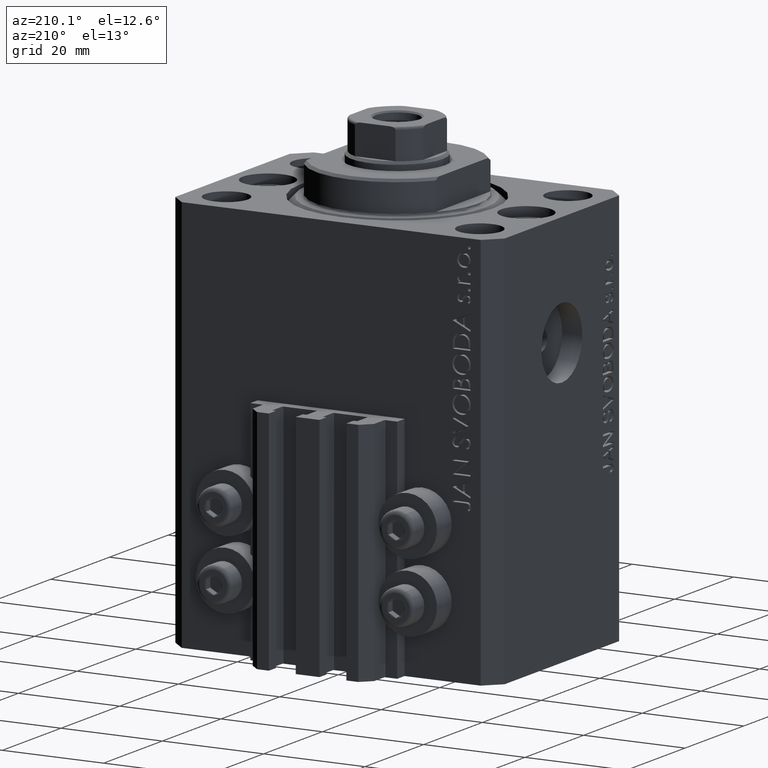
[diagram: clean part render]
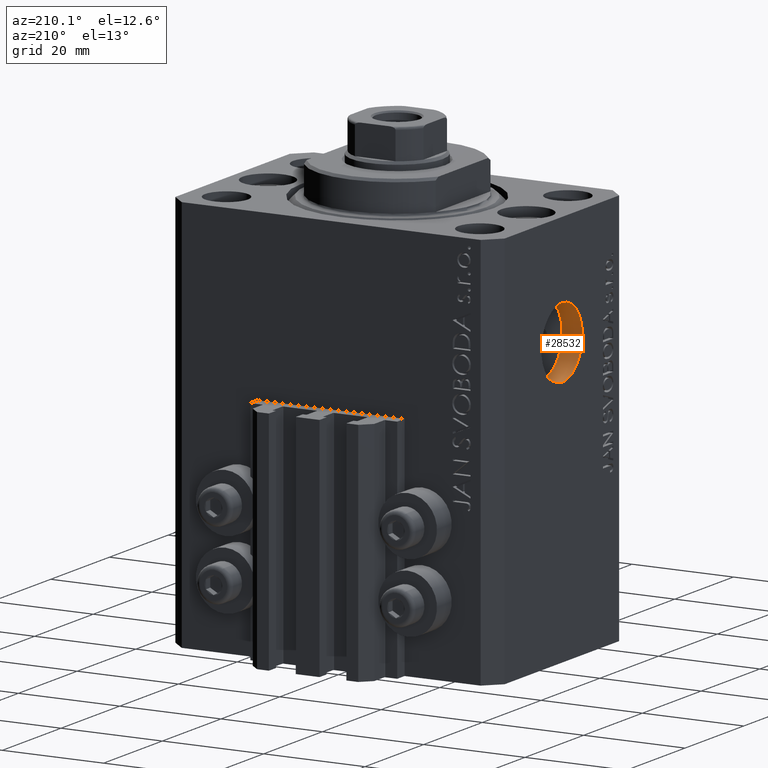
[diagram: same view with one face highlighted and labeled with its STEP entity id]
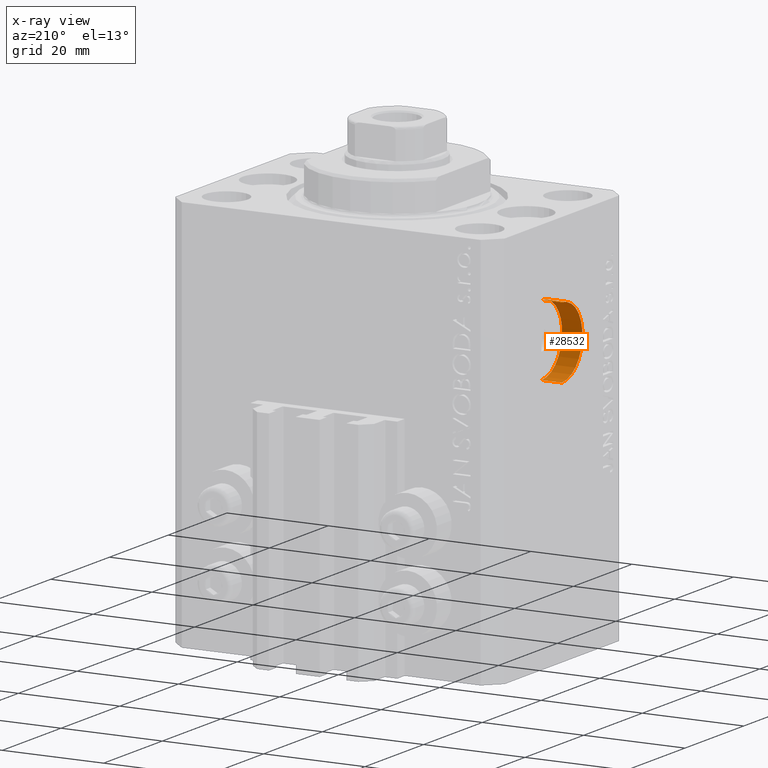
[diagram: x-ray of the same camera — body ghosted, the highlighted face saturated]
A machine part, auxiliary view. The second image highlights one B-rep face of the part: STEP entity #28532.
The next image is the same camera in x-ray: the body ghosted, the highlighted face saturated — about 0% of this face is hidden behind the body in this view.
In plain terms, the highlighted cylindrical surface (partial cylindrical patch) has radius 7 mm, axis along (-1, -0, -0).
Its self-contained STEP definition (entity closure, byte-faithful):
#1762 = VERTEX_POINT ( 'NONE', #34485 ) ;
#2728 = CYLINDRICAL_SURFACE ( 'NONE', #32002, 6.999999999999999112 ) ;
#3981 = CARTESIAN_POINT ( 'NONE',  ( -32.49999999999650413, 8.572527594031474176E-16, -28.99999999999999645 ) ) ;
#4033 = EDGE_CURVE ( 'NONE', #13153, #13912, #47155, .T. ) ;
#7737 = DIRECTION ( 'NONE',  ( 0.000000000000000000, 0.000000000000000000, 1.000000000000000000 ) ) ;
#7753 = LINE ( 'NONE', #15385, #14045 ) ;
#10160 = CIRCLE ( 'NONE', #28453, 6.999999999999999112 ) ;
#10498 = ORIENTED_EDGE ( 'NONE', *, *, #37859, .F. ) ;
#10847 = DIRECTION ( 'NONE',  ( -1.000000000000000000, 0.000000000000000000, 0.000000000000000000 ) ) ;
#11824 = CARTESIAN_POINT ( 'NONE',  ( -28.49999999999650413, 0.000000000000000000, -22.00000000000000000 ) ) ;
#13153 = VERTEX_POINT ( 'NONE', #3981 ) ;
#13480 = DIRECTION ( 'NONE',  ( -1.000000000000000000, -0.000000000000000000, -0.000000000000000000 ) ) ;
#13718 = CARTESIAN_POINT ( 'NONE',  ( -28.49999999999650413, 0.000000000000000000, -22.00000000000000000 ) ) ;
#13912 = VERTEX_POINT ( 'NONE', #28120 ) ;
#14045 = VECTOR ( 'NONE', #29936, 1000.000000000000000 ) ;
#15385 = CARTESIAN_POINT ( 'NONE',  ( -28.49999999999650413, 8.572527594031473190E-16, -28.99999999999999645 ) ) ;
#16937 = VERTEX_POINT ( 'NONE', #45866 ) ;
#20124 = ORIENTED_EDGE ( 'NONE', *, *, #40774, .F. ) ;
#20871 = FACE_OUTER_BOUND ( 'NONE', #42607, .T. ) ;
#24660 = ORIENTED_EDGE ( 'NONE', *, *, #39954, .T. ) ;
#26382 = DIRECTION ( 'NONE',  ( -1.000000000000000000, 0.000000000000000000, 0.000000000000000000 ) ) ;
#28120 = CARTESIAN_POINT ( 'NONE',  ( -32.49999999999650413, 0.000000000000000000, -15.00000000000000000 ) ) ;
#28453 = AXIS2_PLACEMENT_3D ( 'NONE', #11824, #26382, #40919 ) ;
#28532 = ADVANCED_FACE ( 'NONE', ( #20871 ), #2728, .F. ) ;
#29090 = CARTESIAN_POINT ( 'NONE',  ( -28.49999999999650413, 0.000000000000000000, -15.00000000000000000 ) ) ;
#29812 = LINE ( 'NONE', #29090, #45219 ) ;
#29936 = DIRECTION ( 'NONE',  ( -1.000000000000000000, -0.000000000000000000, -0.000000000000000000 ) ) ;
#32002 = AXIS2_PLACEMENT_3D ( 'NONE', #13718, #13480, #35427 ) ;
#32587 = ORIENTED_EDGE ( 'NONE', *, *, #4033, .T. ) ;
#33731 = CARTESIAN_POINT ( 'NONE',  ( -32.49999999999650413, 0.000000000000000000, -22.00000000000000000 ) ) ;
#34485 = CARTESIAN_POINT ( 'NONE',  ( -28.49999999999650413, 8.572527594031474176E-16, -28.99999999999999645 ) ) ;
#35427 = DIRECTION ( 'NONE',  ( 0.000000000000000000, 0.000000000000000000, 1.000000000000000000 ) ) ;
#36484 = DIRECTION ( 'NONE',  ( -1.000000000000000000, -0.000000000000000000, -0.000000000000000000 ) ) ;
#37859 = EDGE_CURVE ( 'NONE', #16937, #13912, #29812, .T. ) ;
#39530 = AXIS2_PLACEMENT_3D ( 'NONE', #33731, #10847, #7737 ) ;
#39954 = EDGE_CURVE ( 'NONE', #1762, #13153, #7753, .T. ) ;
#40774 = EDGE_CURVE ( 'NONE', #1762, #16937, #10160, .T. ) ;
#40919 = DIRECTION ( 'NONE',  ( 0.000000000000000000, 0.000000000000000000, 1.000000000000000000 ) ) ;
#42607 = EDGE_LOOP ( 'NONE', ( #20124, #24660, #32587, #10498 ) ) ;
#45219 = VECTOR ( 'NONE', #36484, 1000.000000000000000 ) ;
#45866 = CARTESIAN_POINT ( 'NONE',  ( -28.49999999999650413, 0.000000000000000000, -15.00000000000000000 ) ) ;
#47155 = CIRCLE ( 'NONE', #39530, 6.999999999999999112 ) ;